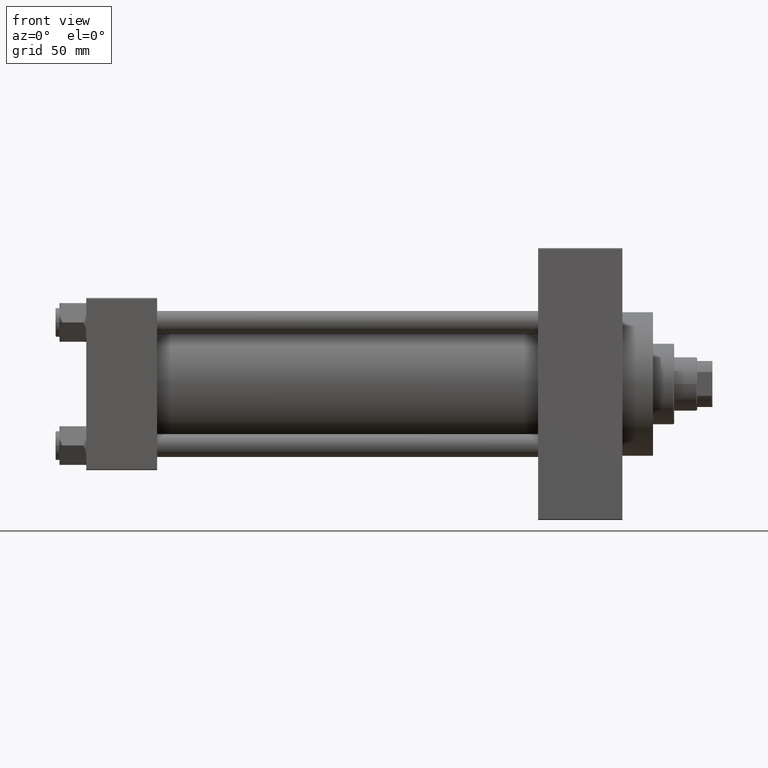
[diagram: clean part render]
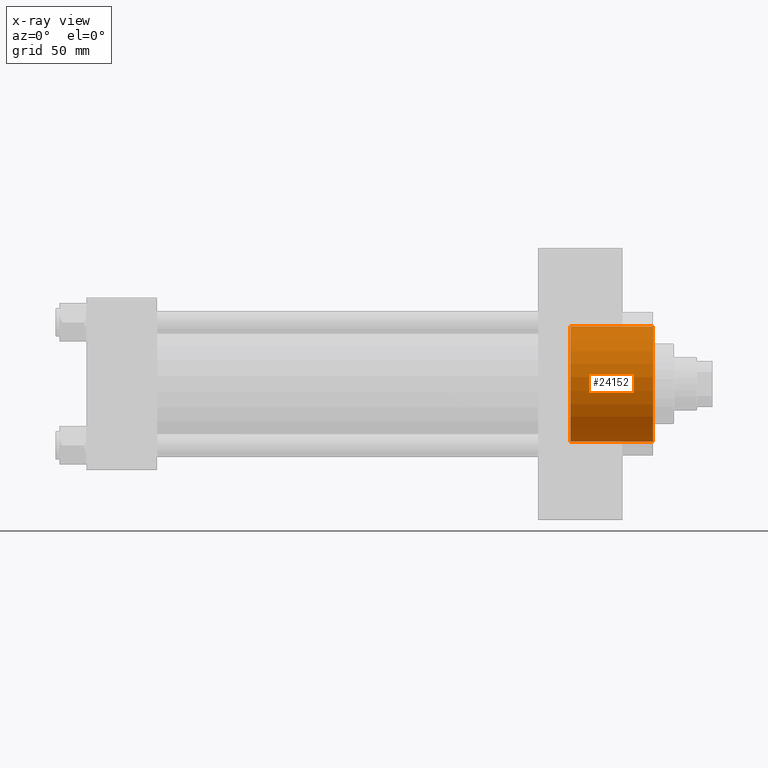
[diagram: x-ray — body ghosted, one internal face saturated and labeled with its STEP entity id]
A machine part, front view, then the same camera in x-ray: the body is ghosted and one INTERNAL B-rep face — a face not visible from any outside direction — is saturated and labeled: STEP entity #24152.
In plain terms, the highlighted cylindrical surface (partial cylindrical patch) has radius 30 mm, axis along (1, 0, 0).
Its self-contained STEP definition (entity closure, byte-faithful):
#1051 = VERTEX_POINT ( 'NONE', #1446 ) ;
#1446 = CARTESIAN_POINT ( 'NONE',  ( 296.0000000000000568, 0.000000000000000000, -30.00000000000000000 ) ) ;
#2714 = DIRECTION ( 'NONE',  ( 0.000000000000000000, 0.000000000000000000, -1.000000000000000000 ) ) ;
#4060 = VERTEX_POINT ( 'NONE', #42582 ) ;
#4149 = EDGE_CURVE ( 'NONE', #46511, #10534, #37088, .T. ) ;
#6038 = EDGE_CURVE ( 'NONE', #10534, #1051, #31599, .T. ) ;
#6088 = CYLINDRICAL_SURFACE ( 'NONE', #28269, 30.00000000000000000 ) ;
#9114 = EDGE_CURVE ( 'NONE', #4060, #1051, #21789, .T. ) ;
#9608 = AXIS2_PLACEMENT_3D ( 'NONE', #14863, #26068, #40666 ) ;
#10534 = VERTEX_POINT ( 'NONE', #42876 ) ;
#11370 = ORIENTED_EDGE ( 'NONE', *, *, #9114, .T. ) ;
#13472 = DIRECTION ( 'NONE',  ( 1.000000000000000000, -0.000000000000000000, -0.000000000000000000 ) ) ;
#14196 = AXIS2_PLACEMENT_3D ( 'NONE', #20610, #42123, #2714 ) ;
#14863 = CARTESIAN_POINT ( 'NONE',  ( 296.0000000000000568, 0.000000000000000000, 0.000000000000000000 ) ) ;
#15781 = ORIENTED_EDGE ( 'NONE', *, *, #4149, .F. ) ;
#16267 = ORIENTED_EDGE ( 'NONE', *, *, #44247, .T. ) ;
#17318 = ORIENTED_EDGE ( 'NONE', *, *, #6038, .F. ) ;
#17738 = CARTESIAN_POINT ( 'NONE',  ( 252.7400000000000091, 0.000000000000000000, 0.000000000000000000 ) ) ;
#17901 = LINE ( 'NONE', #25058, #25039 ) ;
#20610 = CARTESIAN_POINT ( 'NONE',  ( 252.7400000000000091, 0.000000000000000000, 0.000000000000000000 ) ) ;
#21247 = DIRECTION ( 'NONE',  ( 1.000000000000000000, -0.000000000000000000, -0.000000000000000000 ) ) ;
#21553 = CARTESIAN_POINT ( 'NONE',  ( 252.7400000000000091, 0.000000000000000000, -30.00000000000000000 ) ) ;
#21789 = CIRCLE ( 'NONE', #9608, 30.00000000000000000 ) ;
#22826 = EDGE_LOOP ( 'NONE', ( #15781, #16267, #11370, #17318 ) ) ;
#24152 = ADVANCED_FACE ( 'NONE', ( #24883 ), #6088, .F. ) ;
#24883 = FACE_OUTER_BOUND ( 'NONE', #22826, .T. ) ;
#25039 = VECTOR ( 'NONE', #21247, 1000.000000000000000 ) ;
#25058 = CARTESIAN_POINT ( 'NONE',  ( 252.7400000000000091, 3.673940397442059178E-15, 30.00000000000000000 ) ) ;
#26068 = DIRECTION ( 'NONE',  ( 1.000000000000000000, 0.000000000000000000, 0.000000000000000000 ) ) ;
#28269 = AXIS2_PLACEMENT_3D ( 'NONE', #17738, #43295, #39715 ) ;
#31599 = LINE ( 'NONE', #21553, #45667 ) ;
#37088 = CIRCLE ( 'NONE', #14196, 30.00000000000000000 ) ;
#39715 = DIRECTION ( 'NONE',  ( 0.000000000000000000, 0.000000000000000000, -1.000000000000000000 ) ) ;
#40666 = DIRECTION ( 'NONE',  ( 0.000000000000000000, 0.000000000000000000, -1.000000000000000000 ) ) ;
#41070 = CARTESIAN_POINT ( 'NONE',  ( 252.7400000000000091, 3.673940397442059178E-15, 30.00000000000000000 ) ) ;
#42123 = DIRECTION ( 'NONE',  ( 1.000000000000000000, 0.000000000000000000, 0.000000000000000000 ) ) ;
#42582 = CARTESIAN_POINT ( 'NONE',  ( 296.0000000000000568, 3.673940397442059178E-15, 30.00000000000000000 ) ) ;
#42876 = CARTESIAN_POINT ( 'NONE',  ( 252.7400000000000091, 0.000000000000000000, -30.00000000000000000 ) ) ;
#43295 = DIRECTION ( 'NONE',  ( 1.000000000000000000, -0.000000000000000000, -0.000000000000000000 ) ) ;
#44247 = EDGE_CURVE ( 'NONE', #46511, #4060, #17901, .T. ) ;
#45667 = VECTOR ( 'NONE', #13472, 1000.000000000000000 ) ;
#46511 = VERTEX_POINT ( 'NONE', #41070 ) ;